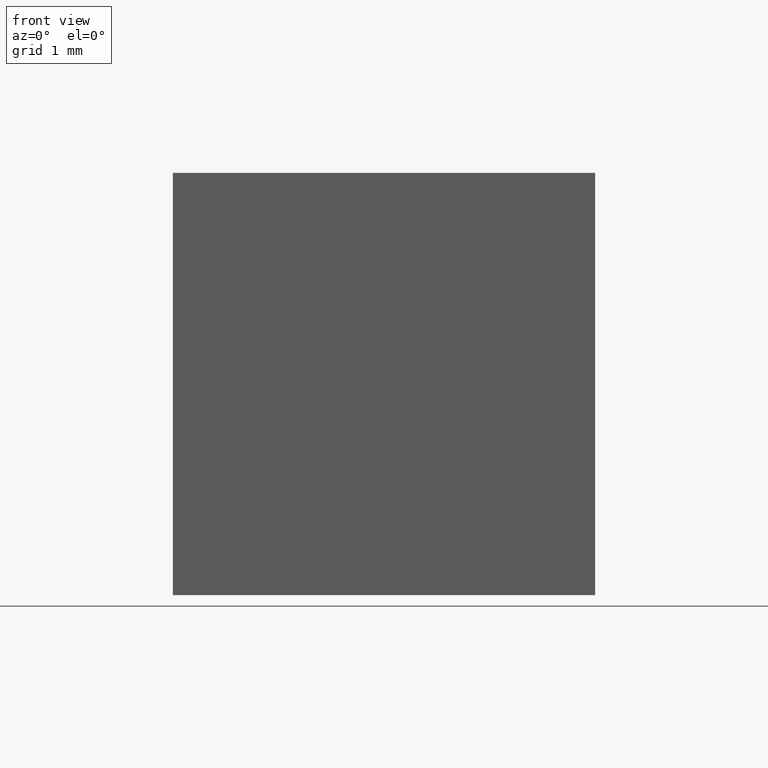
[diagram: clean part render]
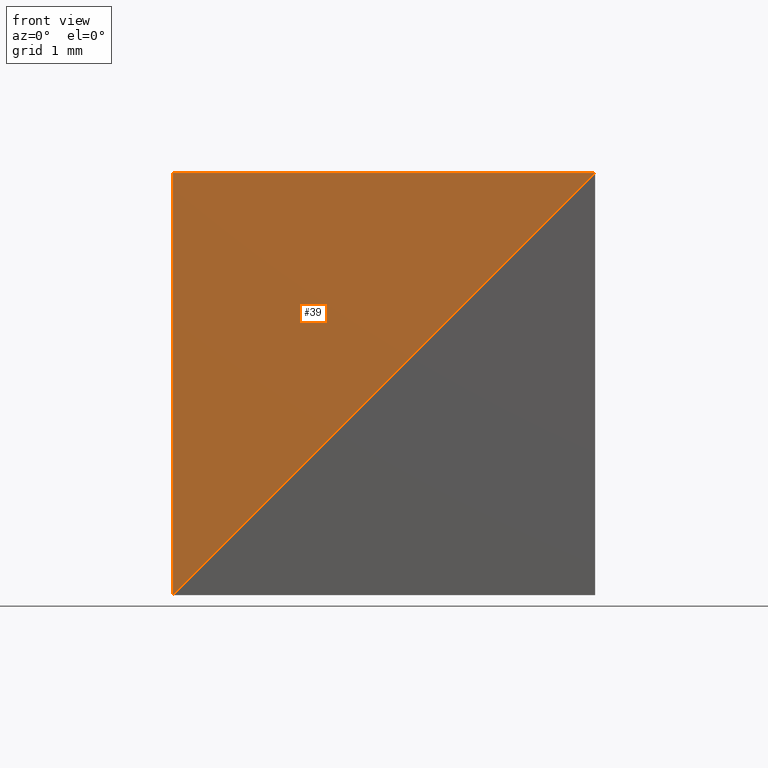
[diagram: same view with one face highlighted and labeled with its STEP entity id]
A machine part, front view. The second image highlights one B-rep face of the part: STEP entity #39.
In plain terms, the highlighted planar face has unit normal (0, 1, 0).
Its self-contained STEP definition (entity closure, byte-faithful):
#2 = ORIENTED_EDGE ( 'NONE', *, *, #100, .T. ) ;
#5 = LINE ( 'NONE', #276, #248 ) ;
#14 = CARTESIAN_POINT ( 'NONE',  ( 0.0000000000000000000, 0.0000000000000000000, 0.0000000000000000000 ) ) ;
#20 = EDGE_CURVE ( 'NONE', #232, #64, #5, .T. ) ;
#32 = CARTESIAN_POINT ( 'NONE',  ( -5.000000000000000000, -0.0000000000000000000, -4.999999999999999100 ) ) ;
#34 = CARTESIAN_POINT ( 'NONE',  ( -5.000000000000000000, 0.0000000000000000000, 0.0000000000000000000 ) ) ;
#39 = ADVANCED_FACE ( 'NONE', ( #183 ), #239, .F. ) ;
#44 = VERTEX_POINT ( 'NONE', #32 ) ;
#54 = DIRECTION ( 'NONE',  ( -0.0000000000000000000, -0.0000000000000000000, -1.000000000000000000 ) ) ;
#63 = AXIS2_PLACEMENT_3D ( 'NONE', #169, #216, #289 ) ;
#64 = VERTEX_POINT ( 'NONE', #34 ) ;
#67 = EDGE_CURVE ( 'NONE', #44, #232, #163, .T. ) ;
#94 = VECTOR ( 'NONE', #54, 1000.000000000000000 ) ;
#98 = VECTOR ( 'NONE', #297, 1000.000000000000000 ) ;
#100 = EDGE_CURVE ( 'NONE', #64, #44, #282, .T. ) ;
#111 = ORIENTED_EDGE ( 'NONE', *, *, #67, .T. ) ;
#137 = ORIENTED_EDGE ( 'NONE', *, *, #20, .T. ) ;
#153 = CARTESIAN_POINT ( 'NONE',  ( 0.0000000000000000000, 0.0000000000000000000, 0.0000000000000000000 ) ) ;
#163 = LINE ( 'NONE', #14, #98 ) ;
#169 = CARTESIAN_POINT ( 'NONE',  ( 0.0000000000000000000, 0.0000000000000000000, 0.0000000000000000000 ) ) ;
#183 = FACE_OUTER_BOUND ( 'NONE', #300, .T. ) ;
#196 = CARTESIAN_POINT ( 'NONE',  ( -5.000000000000000000, -0.0000000000000000000, -4.999999999999999100 ) ) ;
#216 = DIRECTION ( 'NONE',  ( 0.0000000000000000000, 1.000000000000000000, 0.0000000000000000000 ) ) ;
#232 = VERTEX_POINT ( 'NONE', #153 ) ;
#239 = PLANE ( 'NONE',  #63 ) ;
#248 = VECTOR ( 'NONE', #268, 1000.000000000000000 ) ;
#268 = DIRECTION ( 'NONE',  ( -1.000000000000000000, -0.0000000000000000000, -0.0000000000000000000 ) ) ;
#276 = CARTESIAN_POINT ( 'NONE',  ( -5.000000000000000000, 0.0000000000000000000, 0.0000000000000000000 ) ) ;
#282 = LINE ( 'NONE', #196, #94 ) ;
#289 = DIRECTION ( 'NONE',  ( 0.0000000000000000000, -0.0000000000000000000, 1.000000000000000000 ) ) ;
#297 = DIRECTION ( 'NONE',  ( 0.7071067811865475700, 0.0000000000000000000, 0.7071067811865474600 ) ) ;
#300 = EDGE_LOOP ( 'NONE', ( #111, #137, #2 ) ) ;